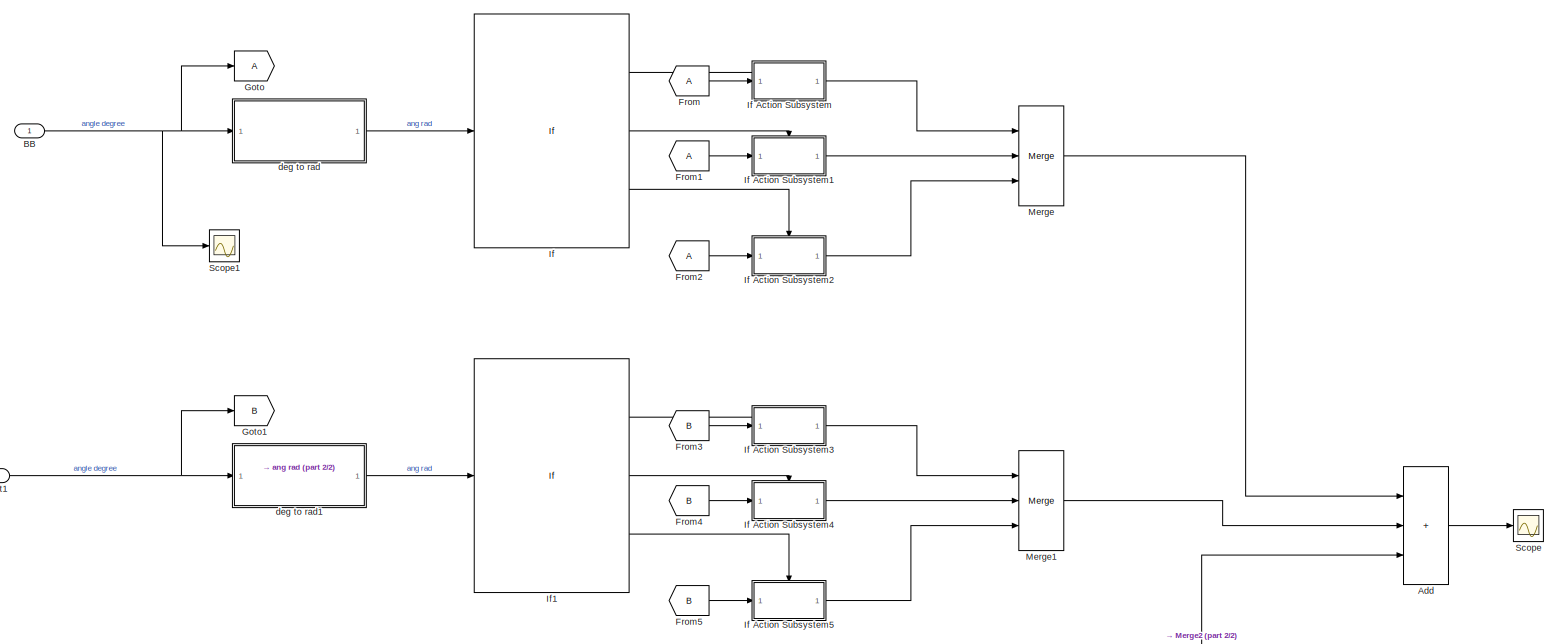
[diagram: root canvas - part 1/2, full width, middle band]
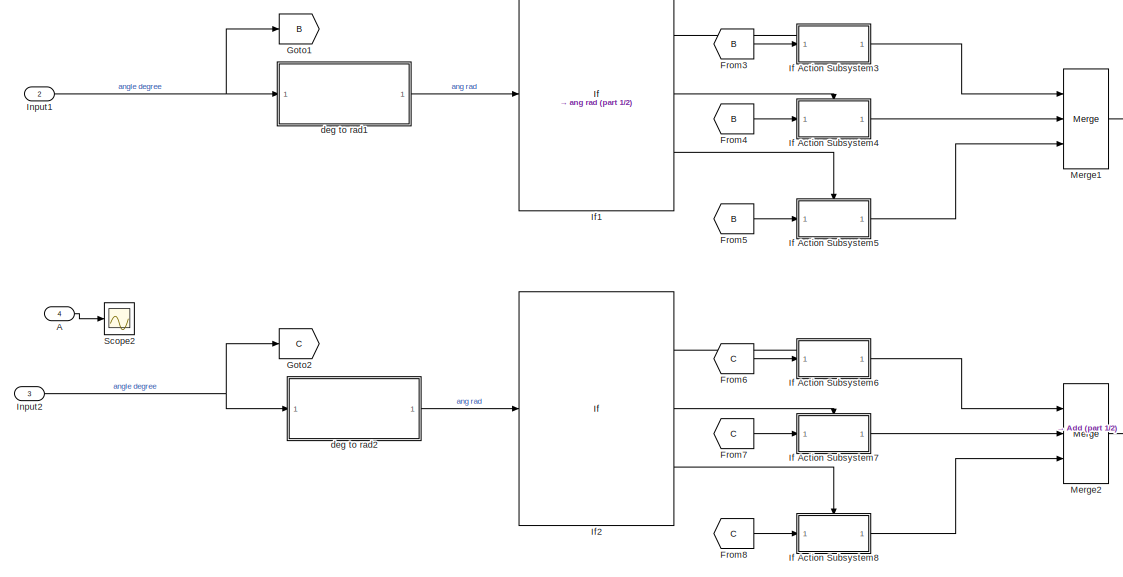
[diagram: root canvas - part 2/2, bottom center region]
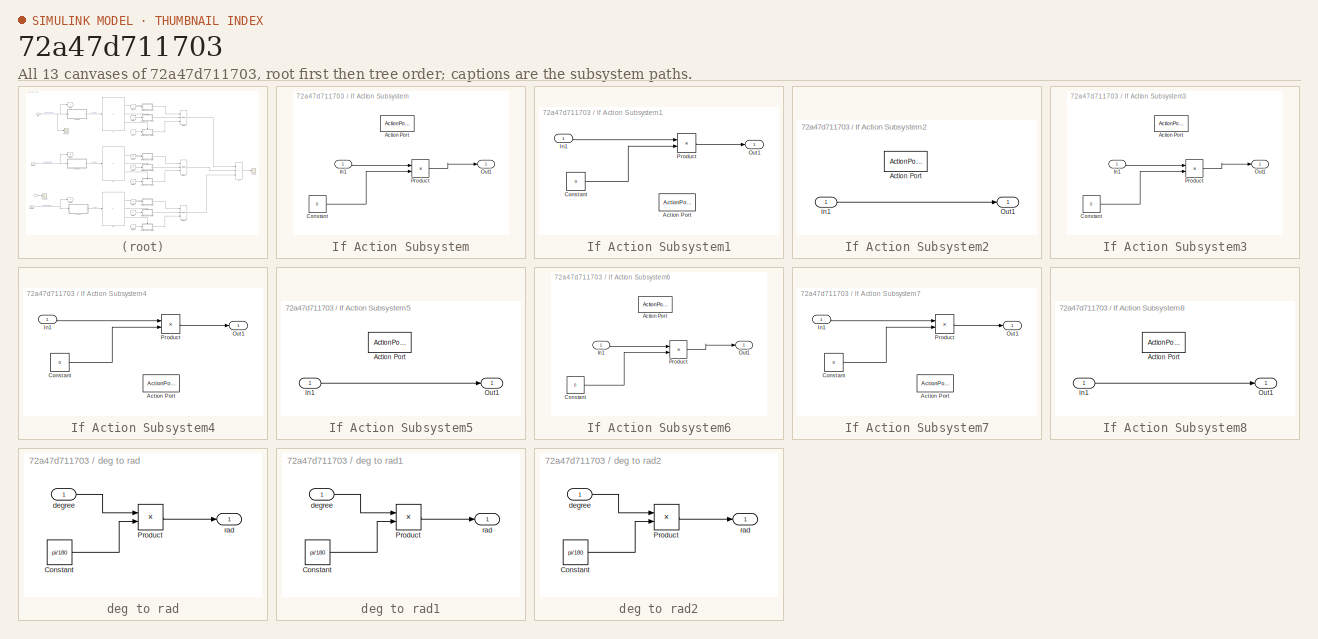
[diagram: thumbnail index - all 13 canvases of the model, root first then tree order]
MODEL slx_72a47d711703
KIND model
CONFIG AbsTol = auto
CONFIG EnableMultiTasking = off
CONFIG FixedStep = auto
CONFIG MaxStep = auto
CONFIG MinStep = auto
CONFIG PreLoadFcn = A = [1:360]';\nB = A + 120;\nC = A + 240;\nt=[1:360]';  
CONFIG RelTol = 1e-3
CONFIG SampleTimeConstraint = Unconstrained
CONFIG Solver = FixedStepDiscrete
CONFIG SolverName = FixedStepDiscrete
CONFIG StartTime = 0.0
CONFIG StopTime = 360
BLOCK [Inport] A
  Port = 4
BLOCK [Sum] Add
  IconShape = rectangular
  Inputs = +++
  Ports = [3, 1]
BLOCK [Inport] BB
BLOCK [From] From
BLOCK [From] From1
BLOCK [From] From2
BLOCK [From] From3
  GotoTag = B
BLOCK [From] From4
  GotoTag = B
BLOCK [From] From5
  GotoTag = B
BLOCK [From] From6
  GotoTag = C
BLOCK [From] From7
  GotoTag = C
BLOCK [From] From8
  GotoTag = C
BLOCK [Goto] Goto
BLOCK [Goto] Goto1
  GotoTag = B
BLOCK [Goto] Goto2
  GotoTag = C
BLOCK [If] If
  ElseIfExpressions = u1 < 1.5706
  IfExpression = u1 > 4.7124
  Ports = [1, 3]
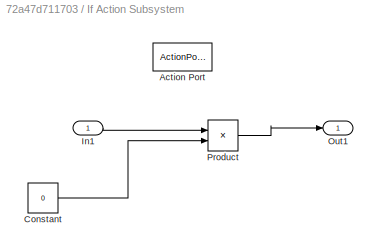
BLOCK [SubSystem] If Action Subsystem
  Ports = [1, 1, 0, 0, 0, 0, 0, 1]
  RequestExecContextInheritance = off
  TreatAsAtomicUnit = on
BLOCK [ActionPort] If Action Subsystem/Action Port
  ActionPortLabel = if(u1 > 4.7124)
BLOCK [Constant] If Action Subsystem/Constant
  Value = 0
BLOCK [Inport] If Action Subsystem/In1
BLOCK [Outport] If Action Subsystem/Out1
BLOCK [Product] If Action Subsystem/Product
  Ports = [2, 1]
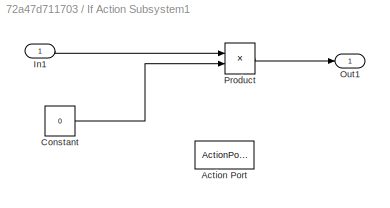
BLOCK [SubSystem] If Action Subsystem1
  Ports = [1, 1, 0, 0, 0, 0, 0, 1]
  RequestExecContextInheritance = off
  TreatAsAtomicUnit = on
BLOCK [ActionPort] If Action Subsystem1/Action Port
  ActionPortLabel = elseif(u1 < 1.5706)
BLOCK [Constant] If Action Subsystem1/Constant
  Value = 0
BLOCK [Inport] If Action Subsystem1/In1
BLOCK [Outport] If Action Subsystem1/Out1
BLOCK [Product] If Action Subsystem1/Product
  Ports = [2, 1]
BLOCK [SubSystem] If Action Subsystem2
  Ports = [1, 1, 0, 0, 0, 0, 0, 1]
  RequestExecContextInheritance = off
  TreatAsAtomicUnit = on
BLOCK [ActionPort] If Action Subsystem2/Action Port
  ActionPortLabel = else
BLOCK [Inport] If Action Subsystem2/In1
BLOCK [Outport] If Action Subsystem2/Out1
BLOCK [SubSystem] If Action Subsystem3
  Ports = [1, 1, 0, 0, 0, 0, 0, 1]
  RequestExecContextInheritance = off
  TreatAsAtomicUnit = on
BLOCK [ActionPort] If Action Subsystem3/Action Port
  ActionPortLabel = if(u1 > 4.7124)
BLOCK [Constant] If Action Subsystem3/Constant
  Value = 0
BLOCK [Inport] If Action Subsystem3/In1
BLOCK [Outport] If Action Subsystem3/Out1
BLOCK [Product] If Action Subsystem3/Product
  Ports = [2, 1]
BLOCK [SubSystem] If Action Subsystem4
  Ports = [1, 1, 0, 0, 0, 0, 0, 1]
  RequestExecContextInheritance = off
  TreatAsAtomicUnit = on
BLOCK [ActionPort] If Action Subsystem4/Action Port
  ActionPortLabel = elseif(u1 < 1.5706)
BLOCK [Constant] If Action Subsystem4/Constant
  Value = 0
BLOCK [Inport] If Action Subsystem4/In1
BLOCK [Outport] If Action Subsystem4/Out1
BLOCK [Product] If Action Subsystem4/Product
  Ports = [2, 1]
BLOCK [SubSystem] If Action Subsystem5
  Ports = [1, 1, 0, 0, 0, 0, 0, 1]
  RequestExecContextInheritance = off
  TreatAsAtomicUnit = on
BLOCK [ActionPort] If Action Subsystem5/Action Port
  ActionPortLabel = else
BLOCK [Inport] If Action Subsystem5/In1
BLOCK [Outport] If Action Subsystem5/Out1
BLOCK [SubSystem] If Action Subsystem6
  Ports = [1, 1, 0, 0, 0, 0, 0, 1]
  RequestExecContextInheritance = off
  TreatAsAtomicUnit = on
BLOCK [ActionPort] If Action Subsystem6/Action Port
  ActionPortLabel = if(u1 > 4.7124)
BLOCK [Constant] If Action Subsystem6/Constant
  Value = 0
BLOCK [Inport] If Action Subsystem6/In1
BLOCK [Outport] If Action Subsystem6/Out1
BLOCK [Product] If Action Subsystem6/Product
  Ports = [2, 1]
BLOCK [SubSystem] If Action Subsystem7
  Ports = [1, 1, 0, 0, 0, 0, 0, 1]
  RequestExecContextInheritance = off
  TreatAsAtomicUnit = on
BLOCK [ActionPort] If Action Subsystem7/Action Port
  ActionPortLabel = elseif(u1 < 1.5706)
BLOCK [Constant] If Action Subsystem7/Constant
  Value = 0
BLOCK [Inport] If Action Subsystem7/In1
BLOCK [Outport] If Action Subsystem7/Out1
BLOCK [Product] If Action Subsystem7/Product
  Ports = [2, 1]
BLOCK [SubSystem] If Action Subsystem8
  Ports = [1, 1, 0, 0, 0, 0, 0, 1]
  RequestExecContextInheritance = off
  TreatAsAtomicUnit = on
BLOCK [ActionPort] If Action Subsystem8/Action Port
  ActionPortLabel = else
BLOCK [Inport] If Action Subsystem8/In1
BLOCK [Outport] If Action Subsystem8/Out1
BLOCK [If] If1
  ElseIfExpressions = u1 < 1.5706
  IfExpression = u1 > 4.7124
  Ports = [1, 3]
BLOCK [If] If2
  ElseIfExpressions = u1 < 1.5706
  IfExpression = u1 > 4.7124
  Ports = [1, 3]
BLOCK [Inport] Input1
  Port = 2
BLOCK [Inport] Input2
  Port = 3
BLOCK [Merge] Merge
  Inputs = 3
  Ports = [3, 1]
BLOCK [Merge] Merge1
  Inputs = 3
  Ports = [3, 1]
BLOCK [Merge] Merge2
  Inputs = 3
  Ports = [3, 1]
BLOCK [Scope] Scope
  Floating = off
  NumInputPorts = 1
  Ports = [1]
  ScopeSpecificationString = Simulink.scopes.TimeScopeBlockCfg('CurrentConfiguration', extmgr.ConfigurationSet(extmgr.Configuration('Core','General UI',true),extmgr.Configuration('Core','Source UI',true),extmgr.Configuration('Sources','WiredSimulink',true),extmgr.Configuration('Visuals','Time Domain',true,'SerializedDisplays',{struct('MinYLimReal','-1.00000','MaxYLimReal','1.00000','YLabelReal','','MinYLimMag','0.00000','MaxY...<+1323ch>
BLOCK [Scope] Scope1
  Floating = off
  NumInputPorts = 1
  Ports = [1]
  ScopeSpecificationString = Simulink.scopes.TimeScopeBlockCfg('CurrentConfiguration', extmgr.ConfigurationSet(extmgr.Configuration('Core','General UI',true),extmgr.Configuration('Core','Source UI',true),extmgr.Configuration('Sources','WiredSimulink',true,'DataLoggingVariableName','ScopeData1'),extmgr.Configuration('Visuals','Time Domain',true,'SerializedDisplays',{struct('MinYLimReal','-1.00000','MaxYLimReal','1.00000','YLab...<+1436ch>
BLOCK [Scope] Scope2
  Floating = off
  NumInputPorts = 1
  Ports = [1]
  ScopeSpecificationString = Simulink.scopes.TimeScopeBlockCfg('CurrentConfiguration', extmgr.ConfigurationSet(extmgr.Configuration('Core','General UI',true),extmgr.Configuration('Core','Source UI',true),extmgr.Configuration('Sources','WiredSimulink',true,'DataLoggingVariableName','ScopeData1'),extmgr.Configuration('Visuals','Time Domain',true,'SerializedDisplays',{struct('MinYLimReal','-1.00000','MaxYLimReal','1.00000','YLab...<+1360ch>
BLOCK [SubSystem] deg to rad
  Ports = [1, 1]
  RequestExecContextInheritance = off
BLOCK [Constant] deg to rad/Constant
  Value = pi/180
BLOCK [Product] deg to rad/Product
  Ports = [2, 1]
BLOCK [Inport] deg to rad/degree
BLOCK [Outport] deg to rad/rad
BLOCK [SubSystem] deg to rad1
  Ports = [1, 1]
  RequestExecContextInheritance = off
BLOCK [Constant] deg to rad1/Constant
  Value = pi/180
BLOCK [Product] deg to rad1/Product
  Ports = [2, 1]
BLOCK [Inport] deg to rad1/degree
BLOCK [Outport] deg to rad1/rad
BLOCK [SubSystem] deg to rad2
  Ports = [1, 1]
  RequestExecContextInheritance = off
BLOCK [Constant] deg to rad2/Constant
  Value = pi/180
BLOCK [Product] deg to rad2/Product
  Ports = [2, 1]
BLOCK [Inport] deg to rad2/degree
BLOCK [Outport] deg to rad2/rad
LINE A:1 -> Scope2:1
LINE Add:1 -> Scope:1
NET BB:1 -> Goto:1, Scope1:1, deg to rad:1
LINE From1:1 -> If Action Subsystem1:1
LINE From2:1 -> If Action Subsystem2:1
LINE From3:1 -> If Action Subsystem3:1
LINE From4:1 -> If Action Subsystem4:1
LINE From5:1 -> If Action Subsystem5:1
LINE From6:1 -> If Action Subsystem6:1
LINE From7:1 -> If Action Subsystem7:1
LINE From8:1 -> If Action Subsystem8:1
LINE From:1 -> If Action Subsystem:1
LINE If Action Subsystem/Constant:1 -> If Action Subsystem/Product:2
LINE If Action Subsystem/In1:1 -> If Action Subsystem/Product:1
LINE If Action Subsystem/Product:1 -> If Action Subsystem/Out1:1
LINE If Action Subsystem1/Constant:1 -> If Action Subsystem1/Product:2
LINE If Action Subsystem1/In1:1 -> If Action Subsystem1/Product:1
LINE If Action Subsystem1/Product:1 -> If Action Subsystem1/Out1:1
LINE If Action Subsystem1:1 -> Merge:2
LINE If Action Subsystem2/In1:1 -> If Action Subsystem2/Out1:1
LINE If Action Subsystem2:1 -> Merge:3
LINE If Action Subsystem3/Constant:1 -> If Action Subsystem3/Product:2
LINE If Action Subsystem3/In1:1 -> If Action Subsystem3/Product:1
LINE If Action Subsystem3/Product:1 -> If Action Subsystem3/Out1:1
LINE If Action Subsystem3:1 -> Merge1:1
LINE If Action Subsystem4/Constant:1 -> If Action Subsystem4/Product:2
LINE If Action Subsystem4/In1:1 -> If Action Subsystem4/Product:1
LINE If Action Subsystem4/Product:1 -> If Action Subsystem4/Out1:1
LINE If Action Subsystem4:1 -> Merge1:2
LINE If Action Subsystem5/In1:1 -> If Action Subsystem5/Out1:1
LINE If Action Subsystem5:1 -> Merge1:3
LINE If Action Subsystem6/Constant:1 -> If Action Subsystem6/Product:2
LINE If Action Subsystem6/In1:1 -> If Action Subsystem6/Product:1
LINE If Action Subsystem6/Product:1 -> If Action Subsystem6/Out1:1
LINE If Action Subsystem6:1 -> Merge2:1
LINE If Action Subsystem7/Constant:1 -> If Action Subsystem7/Product:2
LINE If Action Subsystem7/In1:1 -> If Action Subsystem7/Product:1
LINE If Action Subsystem7/Product:1 -> If Action Subsystem7/Out1:1
LINE If Action Subsystem7:1 -> Merge2:2
LINE If Action Subsystem8/In1:1 -> If Action Subsystem8/Out1:1
LINE If Action Subsystem8:1 -> Merge2:3
LINE If Action Subsystem:1 -> Merge:1
LINE If1:1 -> If Action Subsystem3:ifaction
LINE If1:2 -> If Action Subsystem4:ifaction
LINE If1:3 -> If Action Subsystem5:ifaction
LINE If2:1 -> If Action Subsystem6:ifaction
LINE If2:2 -> If Action Subsystem7:ifaction
LINE If2:3 -> If Action Subsystem8:ifaction
LINE If:1 -> If Action Subsystem:ifaction
LINE If:2 -> If Action Subsystem1:ifaction
LINE If:3 -> If Action Subsystem2:ifaction
NET Input1:1 -> Goto1:1, deg to rad1:1
NET Input2:1 -> Goto2:1, deg to rad2:1
LINE Merge1:1 -> Add:2
LINE Merge2:1 -> Add:3
LINE Merge:1 -> Add:1
LINE deg to rad/Constant:1 -> deg to rad/Product:2
LINE deg to rad/Product:1 -> deg to rad/rad:1
LINE deg to rad/degree:1 -> deg to rad/Product:1
LINE deg to rad1/Constant:1 -> deg to rad1/Product:2
LINE deg to rad1/Product:1 -> deg to rad1/rad:1
LINE deg to rad1/degree:1 -> deg to rad1/Product:1
LINE deg to rad1:1 -> If1:1
LINE deg to rad2/Constant:1 -> deg to rad2/Product:2
LINE deg to rad2/Product:1 -> deg to rad2/rad:1
LINE deg to rad2/degree:1 -> deg to rad2/Product:1
LINE deg to rad2:1 -> If2:1
LINE deg to rad:1 -> If:1
note: NET lines group one-source signal fan-out (src -> all destinations, sorted); 1:1 wires keep LINE
